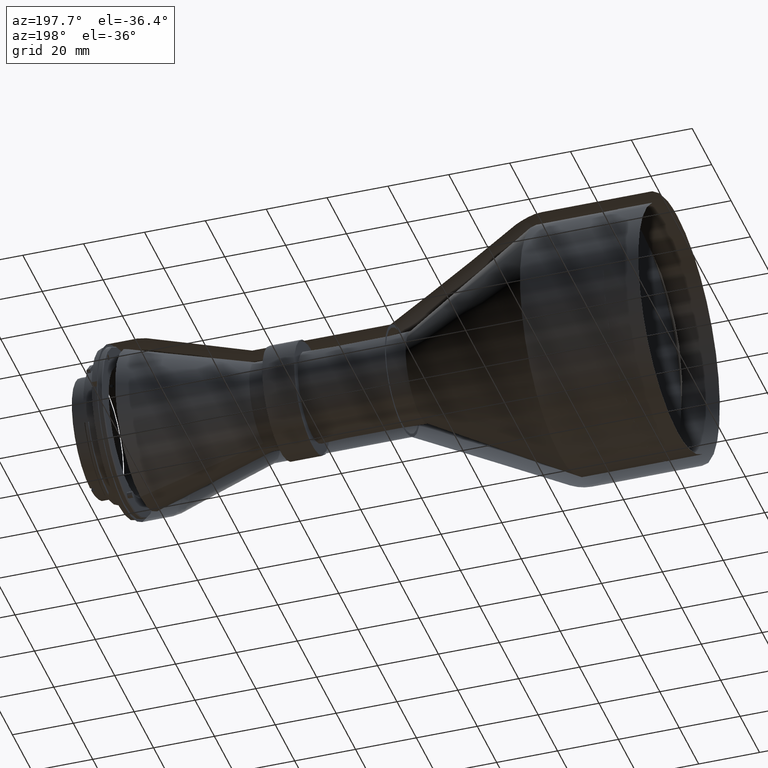
[diagram: clean part render]
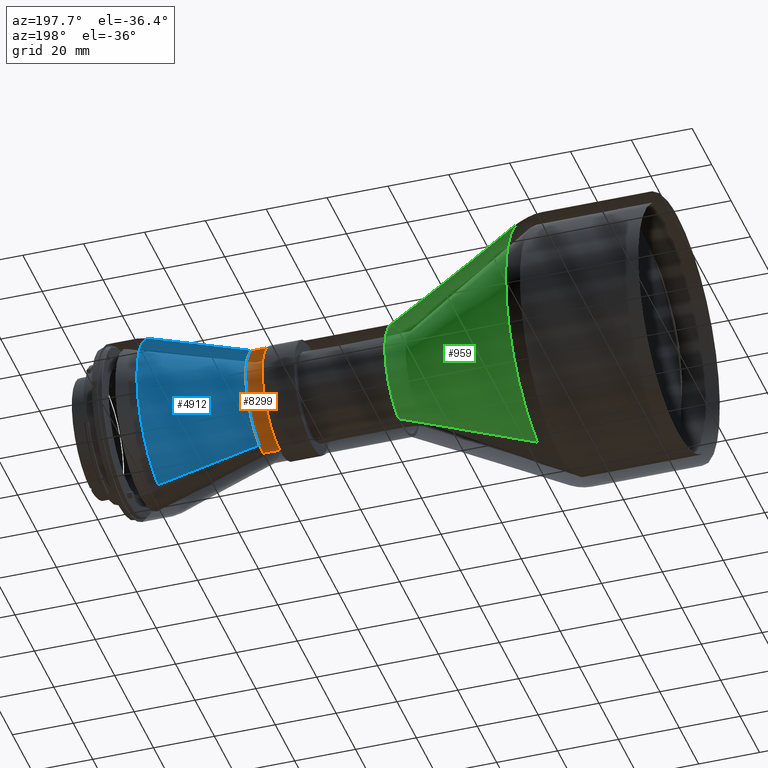
[diagram: same view with three faces highlighted in distinct colors, each labeled with its STEP entity id]
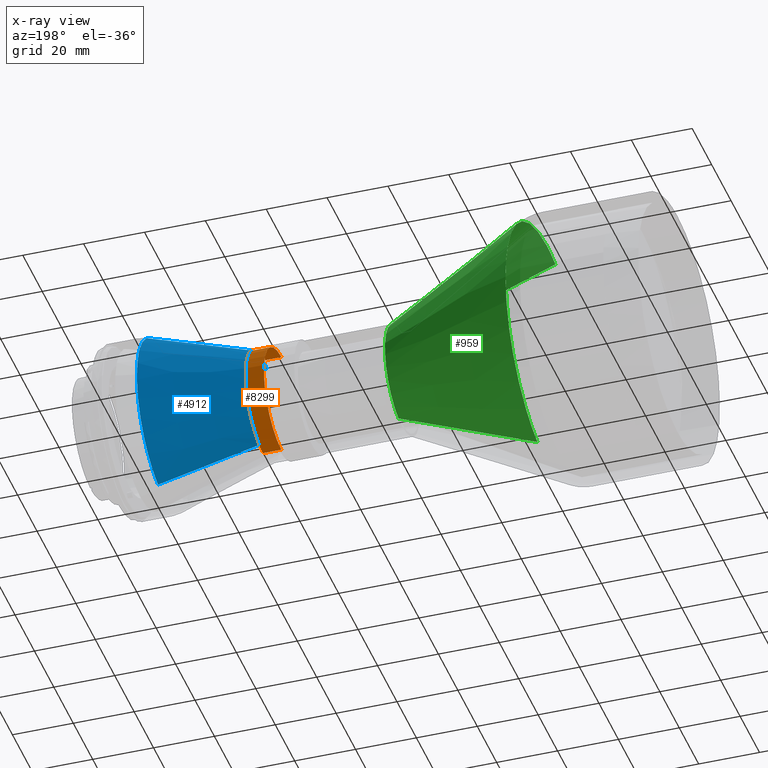
[diagram: x-ray of the same camera — body ghosted, the three highlighted faces saturated]
A machine part, auxiliary view with three faces highlighted in distinct colors.
The next image is the same camera in x-ray (body ghosted, the three faces saturated) — at least one of them is partly hidden behind the body in this view.
Their STEP definitions:

[orange] entity #8299 — the highlighted cylindrical surface (partial cylindrical patch) has radius 18 mm, axis along (1, 0, 0).
#146 = CARTESIAN_POINT ( 'NONE',  ( 106.0747024810630421, 7.976721715857476802, -147.9324219038214210 ) ) ;
#244 = CARTESIAN_POINT ( 'NONE',  ( 106.0747024812180257, 5.799881850358499236, -181.1920850736641171 ) ) ;
#248 = CARTESIAN_POINT ( 'NONE',  ( 112.0747024755846724, 2.655720337299679823, -181.9638781136908108 ) ) ;
#292 = CARTESIAN_POINT ( 'NONE',  ( 112.0747024755852408, 1.327886653998309852, -182.1114151896126998 ) ) ;
#338 = CARTESIAN_POINT ( 'NONE',  ( 106.0747024812352208, 1.178097245062349252, -182.1114151909956433 ) ) ;
#379 = VERTEX_POINT ( 'NONE', #4577 ) ;
#847 = CARTESIAN_POINT ( 'NONE',  ( 106.0747024810931975, 14.31193726115952281, -153.1315989379194491 ) ) ;
#891 = CARTESIAN_POINT ( 'NONE',  ( 106.0747024807093908, -1.788698904734819957E-13, -182.1114151909970076 ) ) ;
#936 = CARTESIAN_POINT ( 'NONE',  ( 106.0747024811706609, 15.62096878215079876, -173.1321273261791589 ) ) ;
#985 = CARTESIAN_POINT ( 'NONE',  ( 112.0747024753737833, 1.820618323873884625E-14, -146.1114151916726485 ) ) ;
#988 = CARTESIAN_POINT ( 'NONE',  ( 106.0747024811190329, 17.42429967658487655, -159.4443289587436254 ) ) ;
#1001 = CARTESIAN_POINT ( 'NONE',  ( 106.0747024807093908, -1.788698904734819957E-13, -182.1114151909970076 ) ) ;
#1032 = CARTESIAN_POINT ( 'NONE',  ( 106.0747024811792585, 14.31193726017781920, -175.0912314453561862 ) ) ;
#1047 = CARTESIAN_POINT ( 'NONE',  ( 109.0747024800000133, 2.588449845256444987E-28, -146.1114151910003898 ) ) ;
#1123 = CARTESIAN_POINT ( 'NONE',  ( 112.0747024754380021, 3.951219512032450254, -181.6723907998444929 ) ) ;
#1231 = ORIENTED_EDGE ( 'NONE', *, *, #6931, .T. ) ;
#1285 = B_SPLINE_CURVE_WITH_KNOTS ( 'NONE', 3,
 ( #3106, #2402, #8107, #6083, #2449, #146, #3827, #5983, #4478, #5275, #847, #3776, #8857, #1643, #988, #6650, #8951, #1745, #3728, #8061, #1553, #4621, #936, #1032, #3202, #3871, #6745, #6791, #7497, #244, #7358, #4574, #338, #891 ),
 .UNSPECIFIED., .F., .F.,
 ( 4, 2, 2, 2, 2, 2, 2, 2, 2, 2, 2, 2, 2, 2, 2, 2, 4 ),
 ( 0.3333333333503580853, 0.3750000000159606772, 0.4166666666815632136, 0.4583333333471658610, 0.5000000000127684530, 0.5416666666783710449, 0.5833333333439736368, 0.6250000000095762287, 0.6666666666751788206, 0.7083333333407815235, 0.7500000000063841155, 0.7916666666719868184, 0.8333333333375894103, 0.8750000000031921132, 0.9166666666687947052, 0.9583333333343974081, 1.000000000000000000 ),
 .UNSPECIFIED. ) ;
#1553 = CARTESIAN_POINT ( 'NONE',  ( 106.0747024811577433, 17.08066988240675954, -169.9112970421202533 ) ) ;
#1643 = CARTESIAN_POINT ( 'NONE',  ( 106.0747024811146844, 17.08066988292532784, -158.3115333414029351 ) ) ;
#1743 = CARTESIAN_POINT ( 'NONE',  ( 112.0747024755852976, 2.190208658265618169, -146.1114151923420650 ) ) ;
#1745 = CARTESIAN_POINT ( 'NONE',  ( 106.0747024811405623, 17.99999999994484412, -165.2895124368651807 ) ) ;
#1882 = CARTESIAN_POINT ( 'NONE',  ( 112.0747024755785333, 13.38441543306023895, -176.3447482377574431 ) ) ;
#1900 = CARTESIAN_POINT ( 'NONE',  ( 109.0747024800000133, -8.881784197001888461E-14, -164.1114151909979739 ) ) ;
#1923 = EDGE_CURVE ( 'NONE', #2661, #4059, #6761, .T. ) ;
#1922 = VERTEX_POINT ( 'NONE', #1001 ) ;
#2145 = AXIS2_PLACEMENT_3D ( 'NONE', #1900, #4782, #6195 ) ;
#2367 = B_SPLINE_CURVE_WITH_KNOTS ( 'NONE', 3,
 ( #8248, #248, #292, #4667 ),
 .UNSPECIFIED., .F., .F.,
 ( 4, 4 ),
 ( 0.000000000000000000, 1.000000000000000000 ),
 .UNSPECIFIED. ) ;
#2402 = CARTESIAN_POINT ( 'NONE',  ( 106.0747024810371926, 1.178097246671718334, -146.1114151911056922 ) ) ;
#2449 = CARTESIAN_POINT ( 'NONE',  ( 106.0747024810544588, 5.799881851885680284, -147.0307453088504133 ) ) ;
#2650 = CARTESIAN_POINT ( 'NONE',  ( 109.0747024800000133, -1.798400481785029766E-13, -182.1114151909955865 ) ) ;
#2661 = VERTEX_POINT ( 'NONE', #5111 ) ;
#2695 = LINE ( 'NONE', #2650, #5199 ) ;
#2972 = B_SPLINE_CURVE_WITH_KNOTS ( 'NONE', 3,
 ( #985, #1743, #6178, #7637, #4011, #9043, #5472, #8196, #4618, #6078, #5981, #8338, #6031, #1882, #7589, #8854, #5320, #1123 ),
 .UNSPECIFIED., .F., .F.,
 ( 4, 2, 2, 2, 2, 2, 2, 2, 4 ),
 ( 0.5182546318850694833, 0.5784728028994358118, 0.6386909739138021402, 0.6989091449281683577, 0.7591273159425346861, 0.8193454869569010146, 0.8795636579712673431, 0.9397818289856336715, 1.000000000000000000 ),
 .UNSPECIFIED. ) ;
#3106 = CARTESIAN_POINT ( 'NONE',  ( 106.0747024805164500, 3.218481672110164243E-09, -146.1113920455252071 ) ) ;
#3148 = ORIENTED_EDGE ( 'NONE', *, *, #1923, .F. ) ;
#3202 = CARTESIAN_POINT ( 'NONE',  ( 106.0747024811835502, 13.56096261197105157, -176.0062967017764208 ) ) ;
#3437 = EDGE_CURVE ( 'NONE', #379, #8877, #2367, .T. ) ;
#3556 = EDGE_LOOP ( 'NONE', ( #4801, #1231, #3775, #4476, #3148 ) ) ;
#3728 = CARTESIAN_POINT ( 'NONE',  ( 106.0747024811448256, 17.88397041806909016, -166.4675805511464830 ) ) ;
#3775 = ORIENTED_EDGE ( 'NONE', *, *, #3437, .F. ) ;
#3776 = CARTESIAN_POINT ( 'NONE',  ( 106.0747024811017809, 15.62096878295733760, -155.0907030572134602 ) ) ;
#3827 = CARTESIAN_POINT ( 'NONE',  ( 106.0747024810673480, 9.020712135879378479, -148.4904464092503531 ) ) ;
#3871 = CARTESIAN_POINT ( 'NONE',  ( 106.0747024811921904, 11.89488151017205730, -177.6723778035008650 ) ) ;
#3932 = DIRECTION ( 'NONE',  ( 1.000000000000000000, 0.000000000000000000, 0.000000000000000000 ) ) ;
#4011 = CARTESIAN_POINT ( 'NONE',  ( 112.0747024755804659, 10.37260048536964874, -149.2384137087978218 ) ) ;
#4059 = VERTEX_POINT ( 'NONE', #4450 ) ;
#4118 = DIRECTION ( 'NONE',  ( 1.000000000000000000, 0.000000000000000000, 0.000000000000000000 ) ) ;
#4450 = CARTESIAN_POINT ( 'NONE',  ( 112.0747024753737833, 1.820618323873884625E-14, -146.1114151916726485 ) ) ;
#4476 = ORIENTED_EDGE ( 'NONE', *, *, #5694, .F. ) ;
#4478 = CARTESIAN_POINT ( 'NONE',  ( 106.0747024810802372, 11.89488151138454164, -150.5504525795585664 ) ) ;
#4574 = CARTESIAN_POINT ( 'NONE',  ( 106.0747024812309292, 2.356165359348882937, -181.9953856091725015 ) ) ;
#4577 = CARTESIAN_POINT ( 'NONE',  ( 112.0747024754380021, 3.951219512032450254, -181.6723907998444929 ) ) ;
#4618 = CARTESIAN_POINT ( 'NONE',  ( 112.0747024755760748, 17.64803913823138259, -159.9468349607718949 ) ) ;
#4621 = CARTESIAN_POINT ( 'NONE',  ( 106.0747024811663834, 16.17899328753303578, -172.0881369061323198 ) ) ;
#4667 = CARTESIAN_POINT ( 'NONE',  ( 112.0747024753026011, -6.129307637879019176E-14, -182.1114151905340179 ) ) ;
#4782 = DIRECTION ( 'NONE',  ( 1.000000000000000000, 0.000000000000000000, 0.000000000000000000 ) ) ;
#4801 = ORIENTED_EDGE ( 'NONE', *, *, #7446, .T. ) ;
#5111 = CARTESIAN_POINT ( 'NONE',  ( 106.0747024805164500, 3.218481672110164243E-09, -146.1113920455252071 ) ) ;
#5199 = VECTOR ( 'NONE', #4118, 1000.000000000000000 ) ;
#5275 = CARTESIAN_POINT ( 'NONE',  ( 106.0747024810888632, 13.56096261303457595, -152.2165336814320824 ) ) ;
#5291 = CYLINDRICAL_SURFACE ( 'NONE', #2145, 17.99999999999760192 ) ;
#5320 = CARTESIAN_POINT ( 'NONE',  ( 112.0747024755828676, 6.088008446824904496, -181.1916132890450513 ) ) ;
#5472 = CARTESIAN_POINT ( 'NONE',  ( 112.0747024755777232, 14.99855435221707367, -153.9212051214144594 ) ) ;
#5608 = CARTESIAN_POINT ( 'NONE',  ( 112.0747024753026011, -6.129307637879019176E-14, -182.1114151905340179 ) ) ;
#5694 = EDGE_CURVE ( 'NONE', #4059, #379, #2972, .T. ) ;
#5981 = CARTESIAN_POINT ( 'NONE',  ( 112.0747024755758616, 17.97191287701172513, -166.5212619619337033 ) ) ;
#5983 = CARTESIAN_POINT ( 'NONE',  ( 106.0747024810759314, 10.97981625499789615, -149.7994779313109177 ) ) ;
#6031 = CARTESIAN_POINT ( 'NONE',  ( 112.0747024755770553, 15.92749635989824952, -172.7781258486448905 ) ) ;
#6078 = CARTESIAN_POINT ( 'NONE',  ( 112.0747024755757906, 18.13177530734512288, -164.3004604827544028 ) ) ;
#6083 = CARTESIAN_POINT ( 'NONE',  ( 106.0747024810500818, 4.667086234591129035, -146.6871155150388972 ) ) ;
#6178 = CARTESIAN_POINT ( 'NONE',  ( 112.0747024755840187, 4.379773274217363621, -146.5155463580902619 ) ) ;
#6195 = DIRECTION ( 'NONE',  ( 0.000000000000000000, 4.934324553890609968E-15, 1.000000000000000000 ) ) ;
#6650 = CARTESIAN_POINT ( 'NONE',  ( 106.0747024811275878, 17.88397041827975542, -161.7552498324484134 ) ) ;
#6745 = CARTESIAN_POINT ( 'NONE',  ( 106.0747024811964963, 10.97981625371826730, -178.4233524516667728 ) ) ;
#6761 = LINE ( 'NONE', #1047, #6953 ) ;
#6791 = CARTESIAN_POINT ( 'NONE',  ( 106.0747024812050938, 9.020712134482712585, -179.7323839735521460 ) ) ;
#6931 = EDGE_CURVE ( 'NONE', #1922, #8877, #2695, .T. ) ;
#6953 = VECTOR ( 'NONE', #3932, 1000.000000000000000 ) ;
#7358 = CARTESIAN_POINT ( 'NONE',  ( 106.0747024812223316, 4.667086233033228559, -181.5357148673742813 ) ) ;
#7446 = EDGE_CURVE ( 'NONE', #2661, #1922, #1285, .T. ) ;
#7497 = CARTESIAN_POINT ( 'NONE',  ( 106.0747024812094423, 7.976721714410913044, -180.2904084788877697 ) ) ;
#7589 = CARTESIAN_POINT ( 'NONE',  ( 112.0747024755794712, 11.78419728709563330, -177.8929139562393686 ) ) ;
#7637 = CARTESIAN_POINT ( 'NONE',  ( 112.0747024755816028, 8.471570795003311005, -148.0792755276896457 ) ) ;
#8061 = CARTESIAN_POINT ( 'NONE',  ( 106.0747024811533947, 17.42429967616758901, -168.7785014248102868 ) ) ;
#8107 = CARTESIAN_POINT ( 'NONE',  ( 106.0747024810414985, 2.356165360947886533, -146.2274447730340796 ) ) ;
#8167 = FACE_OUTER_BOUND ( 'NONE', #3556, .T. ) ;
#8196 = CARTESIAN_POINT ( 'NONE',  ( 112.0747024755764585, 17.00458278393553258, -157.8152911243300878 ) ) ;
#8248 = CARTESIAN_POINT ( 'NONE',  ( 112.0747024754380021, 3.951219512032450254, -181.6723907998444929 ) ) ;
#8299 = ADVANCED_FACE ( 'NONE', ( #8167 ), #5291, .F. ) ;
#8338 = CARTESIAN_POINT ( 'NONE',  ( 112.0747024755764869, 16.86961133452057382, -170.7607179619869839 ) ) ;
#8854 = CARTESIAN_POINT ( 'NONE',  ( 112.0747024755816454, 8.135457328441063396, -180.3167028457848176 ) ) ;
#8857 = CARTESIAN_POINT ( 'NONE',  ( 106.0747024811060726, 16.17899328824622884, -156.1346934773102078 ) ) ;
#8877 = VERTEX_POINT ( 'NONE', #5608 ) ;
#8951 = CARTESIAN_POINT ( 'NONE',  ( 106.0747024811319221, 18.00000000005018208, -162.9333179467401749 ) ) ;
#9043 = CARTESIAN_POINT ( 'NONE',  ( 112.0747024755785475, 13.63657215794968103, -152.1598080313022763 ) ) ;

[blue] entity #4912 — the highlighted conical surface has half-angle 17.005 deg.
#59 = VERTEX_POINT ( 'NONE', #83 ) ;
#83 = CARTESIAN_POINT ( 'NONE',  ( 144.6520146879053925, -0.4970998974992200115, -136.1530264879480114 ) ) ;
#240 = ORIENTED_EDGE ( 'NONE', *, *, #2223, .F. ) ;
#273 = CARTESIAN_POINT ( 'NONE',  ( 144.6520146869999905, -2.337864554743108059, -136.1857552668677158 ) ) ;
#379 = VERTEX_POINT ( 'NONE', #4577 ) ;
#460 = CARTESIAN_POINT ( 'NONE',  ( 144.6520146879053925, -0.4970998974992200115, -136.1530264879480114 ) ) ;
#985 = CARTESIAN_POINT ( 'NONE',  ( 112.0747024753737833, 1.820618323873884625E-14, -146.1114151916726485 ) ) ;
#1112 =( BOUNDED_CURVE ( )  B_SPLINE_CURVE ( 3, ( #2526, #4795, #273, #460 ),
 .UNSPECIFIED., .F., .F. ) 
 B_SPLINE_CURVE_WITH_KNOTS ( ( 4, 4 ),
 ( 0.9073414283069417552, 1.000000000000000000 ),
 .UNSPECIFIED. ) 
 CURVE ( )  GEOMETRIC_REPRESENTATION_ITEM ( )  RATIONAL_B_SPLINE_CURVE ( ( 0.8318540784302611568, 0.8821789783480418201, 0.9382276188712881382, 1.000000000000000000 ) ) 
 REPRESENTATION_ITEM ( '' )  );
#1123 = CARTESIAN_POINT ( 'NONE',  ( 112.0747024754380021, 3.951219512032450254, -181.6723907998444929 ) ) ;
#1230 = CARTESIAN_POINT ( 'NONE',  ( 115.3322686103790033, 2.565114787245190344E-11, -164.1114151909779935 ) ) ;
#1286 = CARTESIAN_POINT ( 'NONE',  ( 112.0747024755873440, -1.327886653982478959, -146.1114151923466977 ) ) ;
#1293 = VECTOR ( 'NONE', #2841, 999.9999999999997726 ) ;
#1451 = EDGE_CURVE ( 'NONE', #379, #8257, #1486, .T. ) ;
#1486 = LINE ( 'NONE', #4411, #3927 ) ;
#1563 = CARTESIAN_POINT ( 'NONE',  ( 144.6520146883545124, -6.138177271363452370, -136.8306273181561608 ) ) ;
#1743 = CARTESIAN_POINT ( 'NONE',  ( 112.0747024755852976, 2.190208658265618169, -146.1114151923420650 ) ) ;
#1854 = ORIENTED_EDGE ( 'NONE', *, *, #8538, .T. ) ;
#1882 = CARTESIAN_POINT ( 'NONE',  ( 112.0747024755785333, 13.38441543306023895, -176.3447482377574431 ) ) ;
#2223 = EDGE_CURVE ( 'NONE', #59, #8257, #7559, .T. ) ;
#2526 = CARTESIAN_POINT ( 'NONE',  ( 144.6520146883545124, -6.138177271363452370, -136.8306273181561608 ) ) ;
#2745 = B_SPLINE_CURVE_WITH_KNOTS ( 'NONE', 3,
 ( #4870, #7745, #1286, #2786 ),
 .UNSPECIFIED., .F., .F.,
 ( 4, 4 ),
 ( 0.4817453681144958644, 0.5182546318850694833 ),
 .UNSPECIFIED. ) ;
#2786 = CARTESIAN_POINT ( 'NONE',  ( 112.0747024753737833, 1.820618323873884625E-14, -146.1114151916726485 ) ) ;
#2841 = DIRECTION ( 'NONE',  ( 0.9562807569110302053, -0.06419638329449385561, 0.2853172590881485893 ) ) ;
#2972 = B_SPLINE_CURVE_WITH_KNOTS ( 'NONE', 3,
 ( #985, #1743, #6178, #7637, #4011, #9043, #5472, #8196, #4618, #6078, #5981, #8338, #6031, #1882, #7589, #8854, #5320, #1123 ),
 .UNSPECIFIED., .F., .F.,
 ( 4, 2, 2, 2, 2, 2, 2, 2, 4 ),
 ( 0.5182546318850694833, 0.5784728028994358118, 0.6386909739138021402, 0.6989091449281683577, 0.7591273159425346861, 0.8193454869569010146, 0.8795636579712673431, 0.9397818289856336715, 1.000000000000000000 ),
 .UNSPECIFIED. ) ;
#3195 = CARTESIAN_POINT ( 'NONE',  ( 144.6520146879053925, -0.4970998974992200115, -136.1530264879480114 ) ) ;
#3293 = CARTESIAN_POINT ( 'NONE',  ( 144.6520146869999905, 42.30630420587620222, -135.3919823536652132 ) ) ;
#3845 = VERTEX_POINT ( 'NONE', #5976 ) ;
#3927 = VECTOR ( 'NONE', #5826, 999.9999999999998863 ) ;
#4011 = CARTESIAN_POINT ( 'NONE',  ( 112.0747024755804659, 10.37260048536964874, -149.2384137087978218 ) ) ;
#4059 = VERTEX_POINT ( 'NONE', #4450 ) ;
#4095 = CARTESIAN_POINT ( 'NONE',  ( 115.3322686103816892, -4.169904205354460380, -145.5785076115756453 ) ) ;
#4115 = DIRECTION ( 'NONE',  ( 1.000000000000000000, 5.925224876869640288E-13, -1.177723188376172063E-14 ) ) ;
#4411 = CARTESIAN_POINT ( 'NONE',  ( 115.3322686103763033, 4.169904205405760678, -182.6443227703803416 ) ) ;
#4450 = CARTESIAN_POINT ( 'NONE',  ( 112.0747024753737833, 1.820618323873884625E-14, -146.1114151916726485 ) ) ;
#4577 = CARTESIAN_POINT ( 'NONE',  ( 112.0747024754380021, 3.951219512032450254, -181.6723907998444929 ) ) ;
#4618 = CARTESIAN_POINT ( 'NONE',  ( 112.0747024755760748, 17.64803913823138259, -159.9468349607718949 ) ) ;
#4795 = CARTESIAN_POINT ( 'NONE',  ( 144.6520146869999905, -4.227908190676804345, -136.4008167751341318 ) ) ;
#4870 = CARTESIAN_POINT ( 'NONE',  ( 112.0747024753749344, -3.951219512032686065, -146.5504395818997807 ) ) ;
#4912 = ADVANCED_FACE ( 'NONE', ( #6288 ), #5553, .F. ) ;
#4930 = ORIENTED_EDGE ( 'NONE', *, *, #6062, .F. ) ;
#5127 = ORIENTED_EDGE ( 'NONE', *, *, #1451, .T. ) ;
#5241 = AXIS2_PLACEMENT_3D ( 'NONE', #1230, #4115, #5570 ) ;
#5320 = CARTESIAN_POINT ( 'NONE',  ( 112.0747024755828676, 6.088008446824904496, -181.1916132890450513 ) ) ;
#5472 = CARTESIAN_POINT ( 'NONE',  ( 112.0747024755777232, 14.99855435221707367, -153.9212051214144594 ) ) ;
#5553 = CONICAL_SURFACE ( 'NONE', #5241, 18.99623026889060640, 0.2967880458675138389 ) ;
#5570 = DIRECTION ( 'NONE',  ( 1.417276373578743939E-13, -0.2195121951226819412, 0.9756097560973966409 ) ) ;
#5694 = EDGE_CURVE ( 'NONE', #4059, #379, #2972, .T. ) ;
#5826 = DIRECTION ( 'NONE',  ( 0.9562807569109473826, 0.06419638329562704637, -0.2853172590881710713 ) ) ;
#5976 = CARTESIAN_POINT ( 'NONE',  ( 112.0747024753749344, -3.951219512032686065, -146.5504395818997807 ) ) ;
#5981 = CARTESIAN_POINT ( 'NONE',  ( 112.0747024755758616, 17.97191287701172513, -166.5212619619337033 ) ) ;
#6031 = CARTESIAN_POINT ( 'NONE',  ( 112.0747024755770553, 15.92749635989824952, -172.7781258486448905 ) ) ;
#6062 = EDGE_CURVE ( 'NONE', #3845, #6297, #6385, .T. ) ;
#6078 = CARTESIAN_POINT ( 'NONE',  ( 112.0747024755757906, 18.13177530734512288, -164.3004604827544028 ) ) ;
#6095 = ORIENTED_EDGE ( 'NONE', *, *, #5694, .T. ) ;
#6178 = CARTESIAN_POINT ( 'NONE',  ( 112.0747024755840187, 4.379773274217363621, -146.5155463580902619 ) ) ;
#6288 = FACE_OUTER_BOUND ( 'NONE', #7548, .T. ) ;
#6297 = VERTEX_POINT ( 'NONE', #1563 ) ;
#6385 = LINE ( 'NONE', #4095, #1293 ) ;
#6714 = EDGE_CURVE ( 'NONE', #6297, #59, #1112, .T. ) ;
#7533 = CARTESIAN_POINT ( 'NONE',  ( 144.6520146870000190, 54.80842767263801818, -180.4413967217916479 ) ) ;
#7548 = EDGE_LOOP ( 'NONE', ( #6095, #5127, #240, #9196, #4930, #1854 ) ) ;
#7559 =( BOUNDED_CURVE ( )  B_SPLINE_CURVE ( 3, ( #3195, #3293, #7533, #8896 ),
 .UNSPECIFIED., .F., .F. ) 
 B_SPLINE_CURVE_WITH_KNOTS ( ( 4, 4 ),
 ( 0.000000000000000000, 1.000000000000000000 ),
 .UNSPECIFIED. ) 
 CURVE ( )  GEOMETRIC_REPRESENTATION_ITEM ( )  RATIONAL_B_SPLINE_CURVE ( ( 1.000000000000000000, 0.3951057144607962313, 0.3390570739385670440, 0.8318540784333124938 ) ) 
 REPRESENTATION_ITEM ( '' )  );
#7589 = CARTESIAN_POINT ( 'NONE',  ( 112.0747024755794712, 11.78419728709563330, -177.8929139562393686 ) ) ;
#7637 = CARTESIAN_POINT ( 'NONE',  ( 112.0747024755816028, 8.471570795003311005, -148.0792755276896457 ) ) ;
#7745 = CARTESIAN_POINT ( 'NONE',  ( 112.0747024755881398, -2.655720337267630793, -146.2589522682686152 ) ) ;
#8027 = CARTESIAN_POINT ( 'NONE',  ( 144.6520146902244051, 6.138177271488149955, -191.3922030639729996 ) ) ;
#8196 = CARTESIAN_POINT ( 'NONE',  ( 112.0747024755764585, 17.00458278393553258, -157.8152911243300878 ) ) ;
#8257 = VERTEX_POINT ( 'NONE', #8027 ) ;
#8338 = CARTESIAN_POINT ( 'NONE',  ( 112.0747024755764869, 16.86961133452057382, -170.7607179619869839 ) ) ;
#8538 = EDGE_CURVE ( 'NONE', #3845, #4059, #2745, .T. ) ;
#8854 = CARTESIAN_POINT ( 'NONE',  ( 112.0747024755816454, 8.135457328441063396, -180.3167028457848176 ) ) ;
#8896 = CARTESIAN_POINT ( 'NONE',  ( 144.6520146902244051, 6.138177271488150843, -191.3922030639729996 ) ) ;
#9043 = CARTESIAN_POINT ( 'NONE',  ( 112.0747024755785475, 13.63657215794968103, -152.1598080313022763 ) ) ;
#9196 = ORIENTED_EDGE ( 'NONE', *, *, #6714, .F. ) ;

[green] entity #959 — the highlighted conical surface has half-angle 26.96 deg.
#48 = ORIENTED_EDGE ( 'NONE', *, *, #827, .T. ) ;
#186 = CARTESIAN_POINT ( 'NONE',  ( 18.97945199938865102, -0.2251392734379659977, -122.0421294746484051 ) ) ;
#253 = VERTEX_POINT ( 'NONE', #7015 ) ;
#441 = CARTESIAN_POINT ( 'NONE',  ( 66.30158704599996611, 15.52539976978911618, -173.2387534679928649 ) ) ;
#492 = CARTESIAN_POINT ( 'NONE',  ( 66.30158704599999453, -2.797425767035691457, -146.2908359924793160 ) ) ;
#536 = CARTESIAN_POINT ( 'NONE',  ( 66.30158704599999453, 18.00938335961647141, -164.2512303027045277 ) ) ;
#574 = CARTESIAN_POINT ( 'NONE',  ( 18.97945199618209955, -9.234853494760120185, -123.0676218791214040 ) ) ;
#580 = CARTESIAN_POINT ( 'NONE',  ( 66.30158704599999453, 17.79123728541003047, -161.3142816213510571 ) ) ;
#621 = CARTESIAN_POINT ( 'NONE',  ( 66.30158704599999453, 4.227743093443455891, -146.6049559067789687 ) ) ;
#636 = LINE ( 'NONE', #4180, #7395 ) ;
#704 = CARTESIAN_POINT ( 'NONE',  ( 18.97945199897358748, 9.234853494923680017, -205.1552085006957213 ) ) ;
#721 = B_SPLINE_CURVE_WITH_KNOTS ( 'NONE', 3,
 ( #7479, #2431, #6584, #6679, #5303, #6011, #1625, #3132, #3036, #4604, #3896, #8883, #5827, #4508, #8181, #824, #4412, #7386 ),
 .UNSPECIFIED., .F., .F.,
 ( 4, 2, 2, 2, 2, 2, 2, 2, 4 ),
 ( 0.000000000000000000, 0.06250000000000002776, 0.1250000000000000555, 0.1875000000000000833, 0.2500000000000001110, 0.3125000000000000555, 0.3750000000000000555, 0.4375000000000000000, 0.5000000000000000000 ),
 .UNSPECIFIED. ) ;
#824 = CARTESIAN_POINT ( 'NONE',  ( 18.97945199957544915, 41.76863310587630451, -158.3809386475043652 ) ) ;
#827 = EDGE_CURVE ( 'NONE', #2602, #3833, #6427, .T. ) ;
#876 = CARTESIAN_POINT ( 'NONE',  ( 66.30158704982883933, 3.951221289377015111, -181.6723987094797792 ) ) ;
#959 = ADVANCED_FACE ( 'NONE', ( #6979 ), #1890, .F. ) ;
#1029 = VERTEX_POINT ( 'NONE', #6746 ) ;
#1187 = CARTESIAN_POINT ( 'NONE',  ( 66.30158704599999453, 15.05101883066635970, -154.2210291775036239 ) ) ;
#1280 = CARTESIAN_POINT ( 'NONE',  ( 66.30158704600000874, 15.36708272713434731, -154.7199566190051598 ) ) ;
#1326 = CARTESIAN_POINT ( 'NONE',  ( 66.30158704599998032, 14.01132947692455133, -152.7960947863904266 ) ) ;
#1388 = CARTESIAN_POINT ( 'NONE',  ( 18.97945199907670499, 13.82453139820720445, -203.9159122758820502 ) ) ;
#1625 = CARTESIAN_POINT ( 'NONE',  ( 18.97945199957884910, 20.88766792351323787, -127.4895310000810582 ) ) ;
#1676 = EDGE_CURVE ( 'NONE', #1029, #6996, #636, .T. ) ;
#1890 = CONICAL_SURFACE ( 'NONE', #2333, 39.66290113073098667, 0.4705349788095700703 ) ;
#1897 = CARTESIAN_POINT ( 'NONE',  ( 66.30158704599999453, 16.58450131723715160, -171.1336231423203174 ) ) ;
#1944 = CARTESIAN_POINT ( 'NONE',  ( 66.30158704599999453, 16.93000444708725283, -157.8851483061107785 ) ) ;
#1990 = CARTESIAN_POINT ( 'NONE',  ( 66.30158704599999453, 11.53429385957216979, -150.2797213356681425 ) ) ;
#2032 = CARTESIAN_POINT ( 'NONE',  ( 66.30158704599999453, 17.90866930051088701, -166.0154240351645853 ) ) ;
#2105 = DIRECTION ( 'NONE',  ( -6.172294734992801886E-12, 0.2195121951200250388, -0.9756097560979943850 ) ) ;
#2333 = AXIS2_PLACEMENT_3D ( 'NONE', #3345, #7062, #2105 ) ;
#2431 = CARTESIAN_POINT ( 'NONE',  ( 18.97945199943161398, 2.528289039747913858, -122.0273941437276193 ) ) ;
#2601 = CARTESIAN_POINT ( 'NONE',  ( 66.30158704599999453, 5.362044267543225828, -146.9182160551198422 ) ) ;
#2602 = VERTEX_POINT ( 'NONE', #7195 ) ;
#2697 = CARTESIAN_POINT ( 'NONE',  ( 66.30158704599999453, 15.81736480761102293, -172.7229866913420153 ) ) ;
#2708 = CARTESIAN_POINT ( 'NONE',  ( 18.97945199934996197, 35.72075054489533130, -186.4618880517631112 ) ) ;
#2738 = CARTESIAN_POINT ( 'NONE',  ( 66.30158704599999453, 14.89552806333102630, -174.2346108138984278 ) ) ;
#2754 = CARTESIAN_POINT ( 'NONE',  ( 18.97945199932709670, 34.39989095319931778, -188.4458179779084617 ) ) ;
#2781 = CARTESIAN_POINT ( 'NONE',  ( 66.30158704600000874, 17.30325838120852211, -159.0135691783747518 ) ) ;
#2799 = CARTESIAN_POINT ( 'NONE',  ( 18.97945199911946190, 18.21646316278225441, -202.1071534573310657 ) ) ;
#2840 = VECTOR ( 'NONE', #8823, 1000.000000000000114 ) ;
#3036 = CARTESIAN_POINT ( 'NONE',  ( 18.97945199961241158, 27.63089242089163022, -132.2681920972517844 ) ) ;
#3126 = EDGE_LOOP ( 'NONE', ( #7459, #4324, #48, #4687, #5678, #6576 ) ) ;
#3132 = CARTESIAN_POINT ( 'NONE',  ( 18.97945199960330598, 25.48282488709247673, -130.5244726575083973 ) ) ;
#3311 = CARTESIAN_POINT ( 'NONE',  ( 66.30158704599999453, 17.50730045616904818, -168.3363926456527508 ) ) ;
#3345 = CARTESIAN_POINT ( 'NONE',  ( 23.71166196032010021, 1.683353456627399809E-10, -164.1114151905099732 ) ) ;
#3360 = CARTESIAN_POINT ( 'NONE',  ( 66.30158704599999453, 12.20820948948678719, -177.3521476143835116 ) ) ;
#3409 = CARTESIAN_POINT ( 'NONE',  ( 66.30158704599999453, 17.99512465091408941, -164.8392410077350405 ) ) ;
#3421 = CARTESIAN_POINT ( 'NONE',  ( 18.97945199951195860, 41.89312806440079839, -168.6370618401612660 ) ) ;
#3450 = CARTESIAN_POINT ( 'NONE',  ( 66.30158704599999453, 17.63593957670781265, -167.7626165884344971 ) ) ;
#3494 = CARTESIAN_POINT ( 'NONE',  ( 66.30158704600000874, 7.561720634639436334, -147.7661352772367707 ) ) ;
#3509 = CARTESIAN_POINT ( 'NONE',  ( 18.97945199947604422, 41.11763456579232923, -173.3231351347257601 ) ) ;
#3511 = DIRECTION ( 'NONE',  ( -0.8913258760594054975, 0.09951874918233330480, -0.4423055518847996970 ) ) ;
#3557 = CARTESIAN_POINT ( 'NONE',  ( 18.97945199905620939, 11.55183285561825457, -204.6338881440954935 ) ) ;
#3833 = VERTEX_POINT ( 'NONE', #186 ) ;
#3896 = CARTESIAN_POINT ( 'NONE',  ( 18.97945199962693863, 33.31227721811701059, -138.2705704000153162 ) ) ;
#4022 = CARTESIAN_POINT ( 'NONE',  ( 66.30158704599999453, 16.34644243142929554, -171.6712431497414286 ) ) ;
#4071 = CARTESIAN_POINT ( 'NONE',  ( 66.30158704600000874, 10.60487790534520158, -149.5552209923515363 ) ) ;
#4167 = CARTESIAN_POINT ( 'NONE',  ( 66.30158704600000874, 8.613771194199115300, -148.2949699174160685 ) ) ;
#4178 = CARTESIAN_POINT ( 'NONE',  ( 18.97945199921052506, 26.26489065482730467, -197.0609398531856584 ) ) ;
#4180 = CARTESIAN_POINT ( 'NONE',  ( 23.71166196007528981, 8.706490492203618814, -202.8069284888013044 ) ) ;
#4208 = CARTESIAN_POINT ( 'NONE',  ( 66.30158704599999453, 17.83652120409999497, -166.6031345034637638 ) ) ;
#4247 = CARTESIAN_POINT ( 'NONE',  ( 18.97945199893034385, -3.253607066826128769, -122.0583367149543932 ) ) ;
#4324 = ORIENTED_EDGE ( 'NONE', *, *, #4507, .T. ) ;
#4412 = CARTESIAN_POINT ( 'NONE',  ( 18.97945199956054552, 42.05455038513589017, -161.1328476074283458 ) ) ;
#4507 = EDGE_CURVE ( 'NONE', #4951, #2602, #6754, .T. ) ;
#4508 = CARTESIAN_POINT ( 'NONE',  ( 18.97945199960939888, 39.84810001873638186, -150.3423920646474983 ) ) ;
#4559 = CARTESIAN_POINT ( 'NONE',  ( 66.30158704599999453, 6.219773372428449854, -181.0440065573837671 ) ) ;
#4599 = EDGE_CURVE ( 'NONE', #4951, #1029, #8138, .T. ) ;
#4604 = CARTESIAN_POINT ( 'NONE',  ( 18.97945199962422436, 31.54566698666171121, -136.1412888534800913 ) ) ;
#4687 = ORIENTED_EDGE ( 'NONE', *, *, #8976, .T. ) ;
#4779 = CARTESIAN_POINT ( 'NONE',  ( 66.30158704600000874, 11.97974202400798482, -150.6636109889638817 ) ) ;
#4823 = CARTESIAN_POINT ( 'NONE',  ( 66.30158704599999453, 17.93612568167101529, -162.4860685035878589 ) ) ;
#4878 = CARTESIAN_POINT ( 'NONE',  ( 18.97945199945668193, 40.53101876196974018, -175.6332281872974477 ) ) ;
#4911 = CARTESIAN_POINT ( 'NONE',  ( 66.30158704599999453, 1.904161152095194431, -146.2024325159570992 ) ) ;
#4950 = CARTESIAN_POINT ( 'NONE',  ( 66.30158704600000874, 14.37345977610449843, -153.2596429560938418 ) ) ;
#4951 = VERTEX_POINT ( 'NONE', #8348 ) ;
#5303 = CARTESIAN_POINT ( 'NONE',  ( 18.97945199952693685, 13.34174206177352318, -124.1182283745652057 ) ) ;
#5484 = CARTESIAN_POINT ( 'NONE',  ( 66.30158704600000874, 17.69047849989674859, -160.7345112261607767 ) ) ;
#5575 = CARTESIAN_POINT ( 'NONE',  ( 66.30158704599999453, 12.63402118993241707, -176.9463495964560877 ) ) ;
#5593 = CARTESIAN_POINT ( 'NONE',  ( 18.97945199928074800, 31.44264466465385155, -192.1627209195085868 ) ) ;
#5624 = CARTESIAN_POINT ( 'NONE',  ( 66.30158704599999453, 14.55714615099832443, -174.7155250852286770 ) ) ;
#5670 = CARTESIAN_POINT ( 'NONE',  ( 66.30158704600000874, 16.21457851538153960, -156.2728130033196123 ) ) ;
#5678 = ORIENTED_EDGE ( 'NONE', *, *, #8133, .T. ) ;
#5827 = CARTESIAN_POINT ( 'NONE',  ( 18.97945199962249774, 37.71348988358835896, -145.2659978763671234 ) ) ;
#6011 = CARTESIAN_POINT ( 'NONE',  ( 18.97945199956350137, 18.44069211804437813, -126.1983838273103515 ) ) ;
#6192 = CARTESIAN_POINT ( 'NONE',  ( 66.30158704599999453, 0.1401761957802181158, -146.1023455984339705 ) ) ;
#6292 = CARTESIAN_POINT ( 'NONE',  ( 66.30158704599999453, 17.19332560140618682, -169.4720147895551179 ) ) ;
#6330 = CARTESIAN_POINT ( 'NONE',  ( 66.30158704599999453, 10.85215060943349030, -178.4842146344771834 ) ) ;
#6343 = CARTESIAN_POINT ( 'NONE',  ( 18.97945199939433181, 38.00922153861544217, -182.2997283240134720 ) ) ;
#6375 = CARTESIAN_POINT ( 'NONE',  ( 66.30158704599999453, 12.83211872752424476, -151.4746692588302892 ) ) ;
#6388 = CARTESIAN_POINT ( 'NONE',  ( 18.97945199914173386, 20.33563625426274868, -201.0163952709442867 ) ) ;
#6414 = CARTESIAN_POINT ( 'NONE',  ( 18.97945199938865102, -0.2251392734379659977, -122.0421294746484051 ) ) ;
#6427 = B_SPLINE_CURVE_WITH_KNOTS ( 'NONE', 3,
 ( #574, #9188, #4247, #6414 ),
 .UNSPECIFIED., .F., .F.,
 ( 4, 4 ),
 ( 0.000000000000000000, 1.000000000000000000 ),
 .UNSPECIFIED. ) ;
#6437 = CARTESIAN_POINT ( 'NONE',  ( 18.97945199897358748, 9.234853494923680017, -205.1552085006957213 ) ) ;
#6576 = ORIENTED_EDGE ( 'NONE', *, *, #1676, .F. ) ;
#6584 = CARTESIAN_POINT ( 'NONE',  ( 18.97945199945807815, 5.283100534736685283, -122.2838414899557762 ) ) ;
#6679 = CARTESIAN_POINT ( 'NONE',  ( 18.97945199950573070, 10.68989389255971645, -123.3292715305335321 ) ) ;
#6746 = CARTESIAN_POINT ( 'NONE',  ( 66.30158704982883933, 3.951221289377015111, -181.6723987094797792 ) ) ;
#6754 = LINE ( 'NONE', #8116, #2840 ) ;
#6895 = CARTESIAN_POINT ( 'NONE',  ( 66.30158704599999453, 7.019735215541455631, -147.5261829953805943 ) ) ;
#6947 = CARTESIAN_POINT ( 'NONE',  ( 66.30158704599999453, 13.44688411417814677, -176.0916901695296417 ) ) ;
#6979 = FACE_OUTER_BOUND ( 'NONE', #3126, .T. ) ;
#6994 = CARTESIAN_POINT ( 'NONE',  ( 66.30158704599999453, 2.487923132171887985, -146.2742440213859254 ) ) ;
#6996 = VERTEX_POINT ( 'NONE', #704 ) ;
#7008 = CARTESIAN_POINT ( 'NONE',  ( 18.97945199952850714, 42.08199514180487455, -166.2611457558037387 ) ) ;
#7015 = CARTESIAN_POINT ( 'NONE',  ( 18.97945199839121955, 42.06928571645761394, -163.8862759189311191 ) ) ;
#7040 = CARTESIAN_POINT ( 'NONE',  ( 66.30158704600000874, 13.24036733476665084, -151.9032883289864913 ) ) ;
#7051 = CARTESIAN_POINT ( 'NONE',  ( 18.97945199918726189, 24.35987754848919451, -198.4932711966626471 ) ) ;
#7062 = DIRECTION ( 'NONE',  ( -1.000000000000000000, 8.438306811492749272E-12, 8.225191006527259378E-12 ) ) ;
#7141 = CARTESIAN_POINT ( 'NONE',  ( 18.97945199839121955, 42.06928571645761394, -163.8862759189311191 ) ) ;
#7195 = CARTESIAN_POINT ( 'NONE',  ( 18.97945199618209955, -9.234853494760120185, -123.0676218791214040 ) ) ;
#7344 = CARTESIAN_POINT ( 'NONE',  ( 66.30158704599996611, 5.103310402546781255, -181.4133387614424180 ) ) ;
#7386 = CARTESIAN_POINT ( 'NONE',  ( 18.97945199839121955, 42.06928571645761394, -163.8862759189311191 ) ) ;
#7395 = VECTOR ( 'NONE', #3511, 999.9999999999998863 ) ;
#7459 = ORIENTED_EDGE ( 'NONE', *, *, #4599, .F. ) ;
#7479 = CARTESIAN_POINT ( 'NONE',  ( 18.97945199938865102, -0.2251392734379659977, -122.0421294746484051 ) ) ;
#7648 = CARTESIAN_POINT ( 'NONE',  ( 66.30158704599999453, 13.83349020812562280, -175.6433248246439121 ) ) ;
#7697 = CARTESIAN_POINT ( 'NONE',  ( 66.30158705123758978, -3.951219511518800243, -146.5504395847970045 ) ) ;
#7700 = B_SPLINE_CURVE_WITH_KNOTS ( 'NONE', 3,
 ( #7141, #7008, #3421, #3509, #4878, #9165, #6343, #2708, #2754, #5593, #7756, #4178, #7051, #6388, #2799, #1388, #3557, #6437 ),
 .UNSPECIFIED., .F., .F.,
 ( 4, 2, 2, 2, 2, 2, 2, 2, 4 ),
 ( 0.5000000000000000000, 0.5539071107088764379, 0.6078142214177529867, 0.6617213321266295356, 0.7156284428355059735, 0.7695355535443824113, 0.8234426642532589602, 0.8773497749621355091, 0.9312568856710119469 ),
 .UNSPECIFIED. ) ;
#7743 = CARTESIAN_POINT ( 'NONE',  ( 66.30158704600000874, 0.7310412818705260829, -146.1164767921057432 ) ) ;
#7756 = CARTESIAN_POINT ( 'NONE',  ( 18.97945199925726811, 29.80629845584566340, -193.8956430463647109 ) ) ;
#7786 = CARTESIAN_POINT ( 'NONE',  ( 66.30158704599998032, 8.381450586027488825, -180.0848134612766671 ) ) ;
#7826 = CARTESIAN_POINT ( 'NONE',  ( 66.30158704599999453, 17.00765923665029433, -170.0348866542364874 ) ) ;
#8116 = CARTESIAN_POINT ( 'NONE',  ( 23.71166196056491060, -8.706490491866953008, -125.4159018922186561 ) ) ;
#8133 = EDGE_CURVE ( 'NONE', #253, #6996, #7700, .T. ) ;
#8138 = B_SPLINE_CURVE_WITH_KNOTS ( 'NONE', 3,
 ( #7697, #492, #8537, #6192, #7743, #4911, #6994, #9059, #621, #2601, #8404, #6895, #3494, #4167, #9107, #8353, #4071, #1990, #4779, #6375, #7040, #1326, #4950, #1187, #1280, #9241, #5670, #1944, #2781, #5484, #580, #4823, #9151, #536, #3409, #2032, #4208, #3450, #3311, #6292, #7826, #1897, #4022, #2697, #441, #2738, #5624, #7648, #6947, #5575, #3360, #8447, #6330, #9194, #7786, #4559, #7344, #876 ),
 .UNSPECIFIED., .F., .F.,
 ( 4, 2, 2, 2, 2, 2, 2, 2, 2, 2, 2, 2, 2, 2, 2, 2, 2, 2, 2, 2, 2, 2, 2, 2, 2, 2, 2, 2, 4 ),
 ( 0.000000000000000000, 0.05838743644371891667, 0.08758115466557833684, 0.1167748728874377917, 0.1459685911092972188, 0.1751623093311566737, 0.2043560275530161563, 0.2335497457748756112, 0.2627434639967350383, 0.2919371822185944931, 0.3211309004404539480, 0.3503246186623134029, 0.3795183368841729132, 0.4087120551060324236, 0.4670994915497513333, 0.4962932097716107882, 0.5254869279934701876, 0.5546806462153296424, 0.5838743644371890973, 0.6130680826590485522, 0.6422618008809080070, 0.6714555191027674619, 0.7006492373246270278, 0.7298429555464864826, 0.7590366737683459375, 0.7882303919902053924, 0.8174241102120648472, 0.8758115466557836459, 0.9341989830995024446 ),
 .UNSPECIFIED. ) ;
#8181 = CARTESIAN_POINT ( 'NONE',  ( 18.97945199959987406, 40.66539428279957491, -152.9856441714699997 ) ) ;
#8348 = CARTESIAN_POINT ( 'NONE',  ( 66.30158705123758978, -3.951219511518800243, -146.5504395847970045 ) ) ;
#8353 = CARTESIAN_POINT ( 'NONE',  ( 66.30158704599999453, 10.12024126876634611, -149.2141297932634245 ) ) ;
#8404 = CARTESIAN_POINT ( 'NONE',  ( 66.30158704599999453, 5.920442691962826132, -147.1024614728401332 ) ) ;
#8447 = CARTESIAN_POINT ( 'NONE',  ( 66.30158704599999453, 11.31782561195000625, -178.1206802591665337 ) ) ;
#8537 = CARTESIAN_POINT ( 'NONE',  ( 66.30158704600000874, -1.630352622166540755, -146.1463620467775968 ) ) ;
#8823 = DIRECTION ( 'NONE',  ( -0.8913258760538088632, -0.09951874916729080978, 0.4423055518994623014 ) ) ;
#8883 = CARTESIAN_POINT ( 'NONE',  ( 18.97945199962607887, 36.39622679494560487, -142.8329813187591810 ) ) ;
#8976 = EDGE_CURVE ( 'NONE', #3833, #253, #721, .T. ) ;
#9059 = CARTESIAN_POINT ( 'NONE',  ( 66.30158704599998032, 3.649851182253990078, -146.4755343192494479 ) ) ;
#9107 = CARTESIAN_POINT ( 'NONE',  ( 66.30158704600000874, 9.125475321024497433, -148.5845688206213708 ) ) ;
#9151 = CARTESIAN_POINT ( 'NONE',  ( 66.30158704599999453, 17.97996284402280764, -163.0753705100117656 ) ) ;
#9165 = CARTESIAN_POINT ( 'NONE',  ( 18.97945199941583283, 38.97680160888728551, -180.1215555070760672 ) ) ;
#9188 = CARTESIAN_POINT ( 'NONE',  ( 18.97945199845493036, -6.280208457956002910, -122.4028267468896729 ) ) ;
#9194 = CARTESIAN_POINT ( 'NONE',  ( 66.30158704600000874, 9.404441282320922468, -179.5048167621647224 ) ) ;
#9241 = CARTESIAN_POINT ( 'NONE',  ( 66.30158704600000874, 15.94968923350467271, -155.7472636860846080 ) ) ;